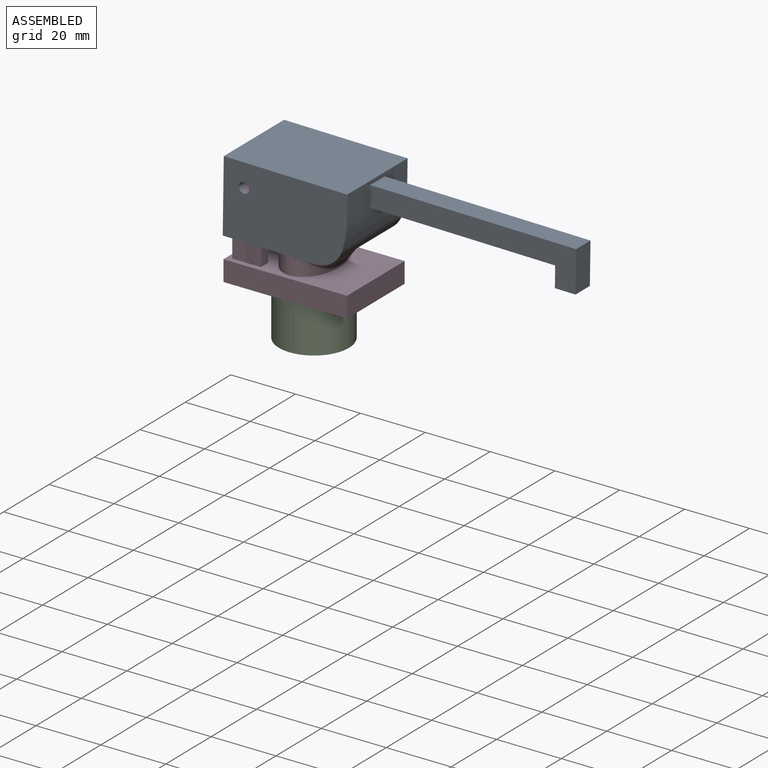
[diagram: assembled view]
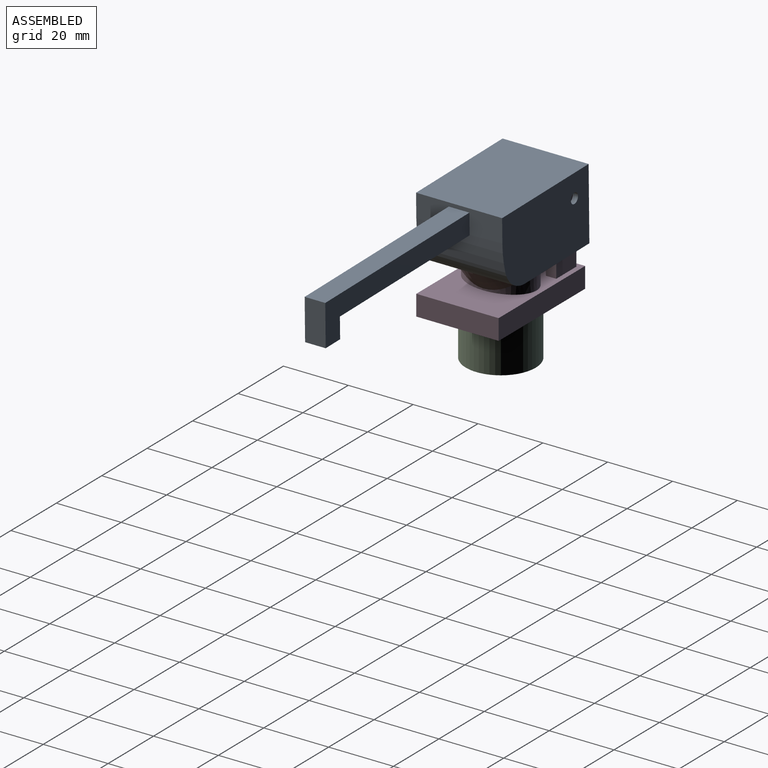
[diagram: assembled view, second angle]
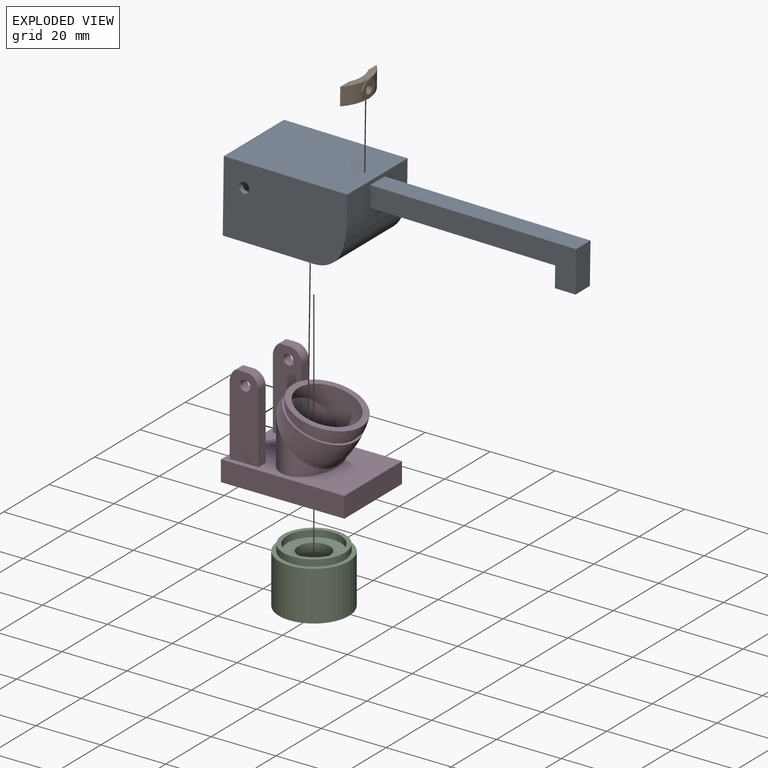
[diagram: exploded view]
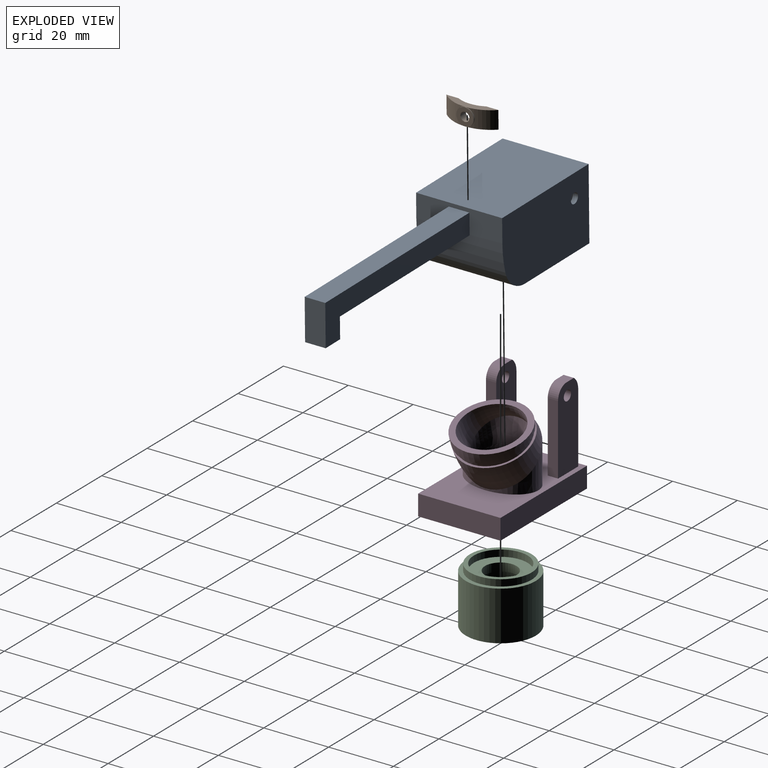
[diagram: exploded view, second angle]
ASSEMBLY  parts=4 mates=6
PART A: 43 faces, bbox 101.6x26.5x22.6 mm
  f0: cylinder r=30.16mm len=13.67mm, axis (0,-1,0), area 79.9mm2, adj f5,f17,f29,f42
  f1: cylinder r=2mm len=63.01mm, axis (-1,0,0), area 775.8mm2, adj f23,f36,f37
  f2: cylinder r=31.75mm len=26.54mm, axis (0,-1,0), area 230.6mm2, adj f6,f14,f15,f31,f32,f33,f42
  f3: plane 26.54x22.23mm, normal (-1,0,0), area 589.9mm2, adj f6,f15,f16,f30
  f4: plane 34.93x20.64mm, normal (0,-1,0), area 513mm2, adj f7,f8,f10,f11,f12,f20,f21,f24
  f5: plane 34.93x20.64mm, normal (0,1,0), area 513mm2, adj f0,f7,f10,f13,f17,f19,f21,f24
  f6: plane 38.1x22.23mm, normal (0,1,0), area 813.1mm2, adj f2,f3,f14,f16,f30,f41,f42
  f7: plane 23.37x20.64mm, normal (1,0,0), area 482.3mm2, adj f4,f5,f10,f30
  f8: cylinder r=30.16mm len=13.67mm, axis (0,-1,0), area 79.9mm2, adj f4,f11,f27,f42
  f9: cylinder r=11.68mm len=23.37mm, axis (0,0,-1), area 380.7mm2, adj f18,f22,f26
  f10: plane 23.37x16.82mm, normal (0,0,1), area 276.9mm2, adj f4,f5,f7,f21
  f11: plane 5.63x5.5mm, normal (-1,0,0), area 31mm2, adj f4,f8,f12,f20
  f12: plane 5.63x5.52mm, normal (0,0,1), area 12.4mm2, adj f4,f11,f20
  f13: plane 5.63x5.52mm, normal (0,0,1), area 12.4mm2, adj f5,f17,f19
  f14: plane 26.54x7.09mm, normal (1,0,0), area 150.5mm2, adj f2,f6,f15,f16,f31,f33,f35
  f15: plane 38.1x22.23mm, normal (0,-1,0), area 813.1mm2, adj f2,f3,f14,f16,f30,f40,f42
  f16: plane 38.1x26.54mm, normal (0,0,-1), area 1011.3mm2, adj f3,f6,f14,f15
  f17: plane 5.63x5.5mm, normal (-1,0,0), area 31mm2, adj f0,f5,f13,f19
  f18: plane 23.37x23.37mm, normal (0,0,1), area 428.9mm2, adj f9
  f19: cylinder r=13.27mm len=5.63mm, axis (0,0,-1), area 44mm2, adj f5,f13,f17,f29
  f20: cylinder r=13.27mm len=5.63mm, axis (0,0,-1), area 44mm2, adj f4,f11,f12,f27
  f21: cylinder r=13.27mm len=23.37mm, axis (0,0,-1), area 157.2mm2, adj f4,f5,f10,f28
  f22: cylinder r=2.7mm len=5.4mm, axis (1,0,0), area 20.1mm2, adj f9,f23
  f23: plane 5.4x5.4mm, normal (-1,0,0), area 10.3mm2, adj f1,f22
  f24: plane 23.37x11.83mm, normal (-0.45,0,0.89), area 48.7mm2, adj f4,f5,f26,f28
  f25: plane 23.37x10.51mm, normal (-0.45,0,0.89), area 36.6mm2, adj f4,f5,f26,f27,f29,f42
  f26: torus R=18.35mm, axis (0,-1,0), area 634.8mm2, adj f9,f24,f25
  f27: torus R=18.35mm, axis (0,-1,0), area 104.5mm2, adj f4,f8,f20,f25,f42
  f28: torus R=18.35mm, axis (0,-1,0), area 101mm2, adj f4,f5,f21,f24
  f29: torus R=18.35mm, axis (0,-1,0), area 104.5mm2, adj f0,f5,f19,f25,f42
  f30: plane 28.34x26.54mm, normal (0,0,1), area 127.1mm2, adj f3,f4,f5,f6,f7,f15,f42
  f31: plane 63.5x12.7mm, normal (0,-1,0), area 443.5mm2, adj f2,f14,f32,f34,f35,f38,f39
  f32: plane 57.15x6.35mm, normal (0,0,1), area 362.9mm2, adj f2,f31,f33,f38
  f33: plane 63.5x12.7mm, normal (0,1,0), area 443.5mm2, adj f2,f14,f32,f34,f35,f38,f39
  f34: plane 12.7x6.35mm, normal (1,0,0), area 80.6mm2, adj f31,f33,f35,f39
  f35: plane 63.5x6.35mm, normal (0,0,-1), area 403.2mm2, adj f14,f31,f33,f34
  f36: plane 4x4mm, normal (-1,0,0), area 12.6mm2, adj f1
  f37: cylinder r=2mm len=9.53mm, axis (0,0,1), area 103.7mm2, adj f1,f39
  f38: plane 6.35x6.35mm, normal (-1,0,0), area 40.3mm2, adj f31,f32,f33,f39
  f39: plane 6.35x6.35mm, normal (0,0,1), area 27.8mm2, adj f31,f33,f34,f37,f38
  f40: cylinder r=1.59mm len=3.18mm, axis (0,1,0), area 15.8mm2, adj f5,f15
  f41: cylinder r=1.59mm len=3.18mm, axis (0,1,0), area 15.8mm2, adj f4,f6
  f42: cylinder r=8.89mm len=26.54mm, axis (0,-1,0), area 184.5mm2, adj f0,f2,f4,f5,f6,f8,f15,f25
PART B: 9 faces, bbox 3.3x16x5.5 mm
  f0: cylinder r=11.68mm len=16.01mm, axis (0,0,-1), area 74mm2, adj f1,f3,f4,f5,f6
  f1: plane 5.5x3.73mm, normal (-1,0,0), area 20.5mm2, adj f0,f2,f4,f5
  f2: cylinder r=9.53mm len=8.56mm, axis (0,0,-1), area 42.7mm2, adj f1,f3,f4,f5,f8
  f3: plane 5.5x3.73mm, normal (-1,0,0), area 20.5mm2, adj f0,f2,f4,f5
  f4: plane 16.01x3.18mm, normal (0,0,1), area 29.1mm2, adj f0,f1,f2,f3
  f5: plane 16.01x3.18mm, normal (0,0,-1), area 29.1mm2, adj f0,f1,f2,f3
  f6: cylinder r=2.7mm len=5.4mm, axis (-1,0,0), area 5.2mm2, adj f0,f7
  f7: plane 5.4x5.4mm, normal (1,0,0), area 16.7mm2, adj f6,f8
  f8: cylinder r=1.4mm len=2.8mm, axis (1,0,0), area 20.8mm2, adj f2,f7
PART C: 10 faces, bbox 21.6x21.6x17.3 mm
  f0: plane 12.7x12.7mm, normal (0,0,-1), area 52.8mm2, adj f2,f8
  f1: plane 16.51x16.51mm, normal (0,0,1), area 140.2mm2, adj f2,f5
  f2: cylinder r=4.85mm len=9.7mm, axis (0,0,-1), area 77.4mm2, adj f0,f1
  f3: cylinder r=10.79mm len=21.59mm, axis (0,0,-1), area 1033.7mm2, adj f4,f9
  f4: plane 21.59x21.59mm, normal (0,0,1), area 81.1mm2, adj f3,f6
  f5: cylinder r=8.26mm len=16.51mm, axis (0,0,-1), area 105.4mm2, adj f1,f7
  f6: cylinder r=9.53mm len=19.05mm, axis (0,0,-1), area 121.6mm2, adj f4,f7
  f7: plane 19.05x19.05mm, normal (0,0,1), area 70.9mm2, adj f5,f6
  f8: cylinder r=6.35mm len=12.7mm, axis (0,0,1), area 506.7mm2, adj f0,f9
  f9: plane 21.59x21.59mm, normal (0,0,-1), area 239.4mm2, adj f3,f8
PART D: 39 faces, bbox 38.8x26.1x32.4 mm
  f0: plane 16.51x16.51mm, normal (0,0,-1), area 77.2mm2, adj f29,f34
  f1: torus R=18.25mm, axis (0,1,0), area 427.8mm2, adj f27,f32
  f2: cylinder r=4.85mm len=9.7mm, axis (0,0,-1), area 144.7mm2, adj f28,f30
  f3: plane 3.18x3.18mm, normal (0,0,1), area 10.1mm2, adj f4,f5,f14,f38
  f4: plane 25.4x8.89mm, normal (0,-1,0), area 212.6mm2, adj f3,f6,f12,f13,f14,f15,f38
  f5: plane 25.4x8.89mm, normal (0,1,0), area 212.6mm2, adj f3,f6,f12,f13,f14,f15,f38
  f6: plane 38.1x25.4mm, normal (0,0,1), area 644.9mm2, adj f4,f5,f7,f8,f9,f10,f12,f13
  f7: plane 38.1x6.35mm, normal (0,1,0), area 241.9mm2, adj f6,f8,f10,f11
  f8: plane 25.4x6.35mm, normal (-1,0,0), area 161.3mm2, adj f6,f7,f9,f11
  f9: plane 38.1x6.35mm, normal (0,-1,0), area 241.9mm2, adj f6,f8,f10,f11
  f10: plane 25.4x6.35mm, normal (1,0,0), area 161.3mm2, adj f6,f7,f9,f11
  f11: plane 38.1x25.4mm, normal (0,0,-1), area 682.7mm2, adj f7,f8,f9,f10,f35
  f12: plane 21.59x3.18mm, normal (-1,0,0), area 68.5mm2, adj f4,f5,f6,f14
  f13: plane 21.59x3.18mm, normal (1,0,0), area 68.5mm2, adj f4,f5,f6,f38
  f14: cylinder r=4.76mm len=3.81mm, axis (0,-1,0), area 14mm2, adj f3,f4,f5,f12
  f15: cylinder r=1.59mm len=3.18mm, axis (0,-1,0), area 31.7mm2, adj f4,f5
  f16: plane 3.18x3.18mm, normal (0,0,1), area 10.1mm2, adj f17,f18,f21,f37
  f17: plane 25.4x8.89mm, normal (0,1,0), area 212.6mm2, adj f6,f16,f19,f20,f21,f22,f37
  f18: plane 25.4x8.89mm, normal (0,-1,0), area 212.6mm2, adj f6,f16,f19,f20,f21,f22,f37
  f19: plane 21.59x3.18mm, normal (-1,0,0), area 68.5mm2, adj f6,f17,f18,f21
  f20: plane 21.59x3.18mm, normal (1,0,0), area 68.5mm2, adj f6,f17,f18,f37
  f21: cylinder r=4.76mm len=3.81mm, axis (0,1,0), area 14mm2, adj f16,f17,f18,f19
  f22: cylinder r=1.59mm len=3.18mm, axis (0,1,0), area 31.7mm2, adj f17,f18
  f23: torus R=18.25mm, axis (0,1,0), area 552.8mm2, adj f24,f26
  f24: plane 22.1x21.24mm, normal (0.28,0,0.96), area 117.2mm2, adj f23,f25
  f25: torus R=18.25mm, axis (0,1,0), area 118.2mm2, adj f24,f33
  f26: extruded ~18.42x15.12mm, area 429.5mm2, adj f23,f28
  f27: extruded ~22.1x16.45mm, area 518.2mm2, adj f1,f6
  f28: plane 18.42x12.79mm, normal (0,0,1), area 111.1mm2, adj f2,f26
  f29: cylinder r=6.6mm len=13.2mm, axis (0,0,-1), area 66.4mm2, adj f0,f30
  f30: plane 13.2x13.2mm, normal (0,0,-1), area 62.9mm2, adj f2,f29
  f31: cylinder r=10.41mm len=20.83mm, axis (0.41,0,0.91), area 99.7mm2, adj f32,f33
  f32: plane 22.8x20.92mm, normal (0.41,0,0.91), area 43.3mm2, adj f1,f31
  f33: plane 22.8x20.92mm, normal (-0.41,0,-0.91), area 43.3mm2, adj f25,f31
  f34: cylinder r=8.26mm len=16.51mm, axis (0,0,-1), area 105.4mm2, adj f0,f36
  f35: cylinder r=9.53mm len=19.05mm, axis (0,0,-1), area 121.6mm2, adj f11,f36
  f36: plane 19.05x19.05mm, normal (0,0,-1), area 70.9mm2, adj f34,f35
  f37: cylinder r=3.81mm len=3.81mm, axis (0,1,0), area 19mm2, adj f16,f17,f18,f20
  f38: cylinder r=3.81mm len=3.81mm, axis (0,-1,0), area 19mm2, adj f3,f4,f5,f13
PLACE A rot(axis=(-1,0,0.01),180deg) t=(-0.43,3.33,28.06)mm
PLACE B rot(axis=(0,1,0),0.8deg) t=(22.86,16.6,23.39)mm
PLACE C rot(axis=(0,0,-1),90deg) t=(18.5,16.03,-9.6)mm
PLACE D t=(-0.53,28.73,-7.06)mm fixed
MATE planar B.f0 <-> A.f9  axis (-0.01,0,-1) through (22.86,16.6,23.39)mm
MATE planar D.f11 <-> C.f8  axis (0,0,-1) through (-0.53,16.03,-7.06)mm
MATE cylindrical A.f0 <-> D.f1  axis (0,-1,0) through (5.82,4.12,20.88)mm
MATE cylindrical A.f1 <-> B.f8  axis (1,0,-0.01) through (36.24,16.6,23.19)mm
MATE planar A.f4 <-> D.f4  axis (0,1,0) through (15.99,4.92,15.02)mm
MATE cylindrical C.f8 <-> D.f2  axis (0,0,1) through (18.5,16.03,-22.3)mm
